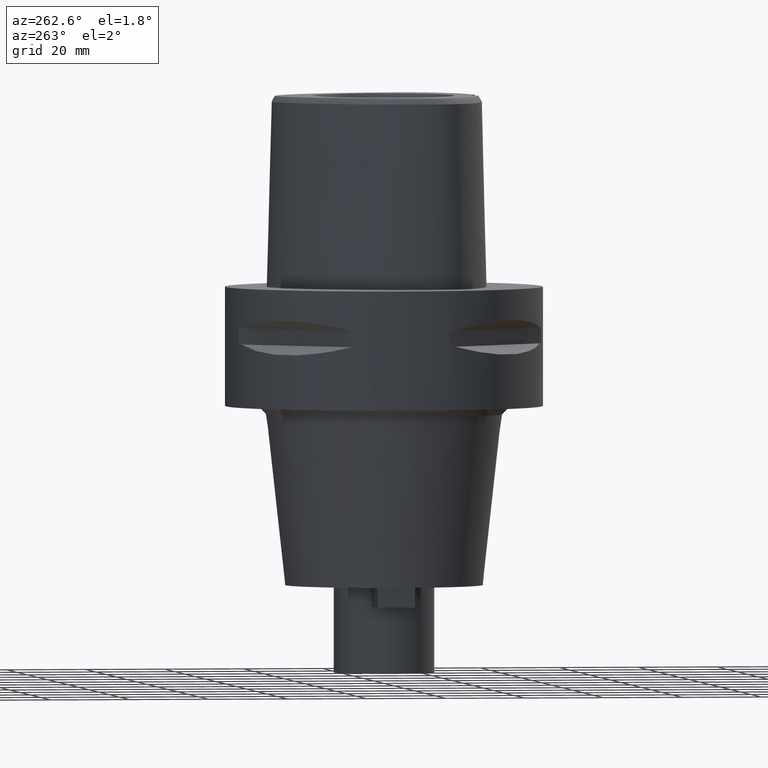
[diagram: clean part render]
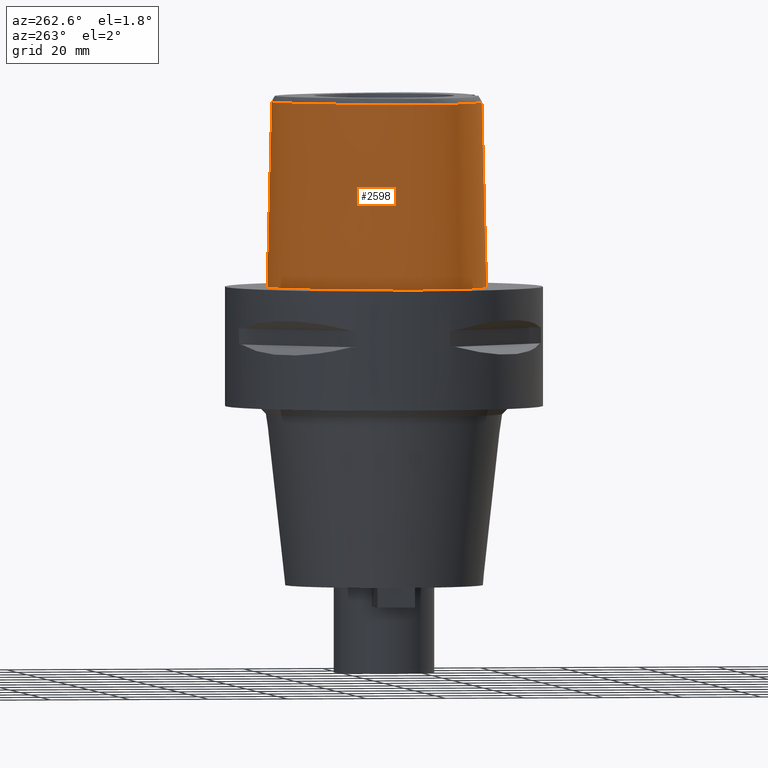
[diagram: same view with one face highlighted and labeled with its STEP entity id]
A machine part, auxiliary view. The second image highlights one B-rep face of the part: STEP entity #2598.
In plain terms, the highlighted face is a freeform B-spline surface patch.
Its self-contained STEP definition (entity closure, byte-faithful):
#197=CARTESIAN_POINT('',(-4.472216406693E0,-2.420008985674E1,4.652070903171E1));
#198=CARTESIAN_POINT('',(-5.535079913525E0,-2.409834636367E1,4.652067798742E1));
#199=CARTESIAN_POINT('',(-7.535595257883E0,-2.383081048525E1,4.652073781250E1));
#200=CARTESIAN_POINT('',(-1.009307845785E1,-2.331390936801E1,4.652070625638E1));
#201=CARTESIAN_POINT('',(-1.233471018789E1,-2.271209935797E1,4.652071928825E1));
#202=CARTESIAN_POINT('',(-1.435036654405E1,-2.203135642315E1,4.652071943964E1));
#203=CARTESIAN_POINT('',(-1.619307667877E1,-2.126999841162E1,4.652071671385E1));
#204=CARTESIAN_POINT('',(-1.788331347372E1,-2.042814453401E1,4.652071968170E1));
#205=CARTESIAN_POINT('',(-1.945535962634E1,-1.948913566345E1,4.652071715150E1));
#206=CARTESIAN_POINT('',(-2.090395454495E1,-1.844437692539E1,4.652071817073E1));
#207=CARTESIAN_POINT('',(-2.214939259759E1,-1.735352740852E1,4.652071779296E1));
#208=CARTESIAN_POINT('',(-2.319114740546E1,-1.624464701558E1,4.652072111417E1));
#209=CARTESIAN_POINT('',(-2.405077292770E1,-1.512522284559E1,4.652072273070E1));
#210=CARTESIAN_POINT('',(-2.475815044172E1,-1.398223285114E1,4.652071975250E1));
#211=CARTESIAN_POINT('',(-2.535403952562E1,-1.275498324401E1,4.652071183143E1));
#212=CARTESIAN_POINT('',(-2.585545021544E1,-1.138820077608E1,4.652072122850E1));
#213=CARTESIAN_POINT('',(-2.624771183551E1,-9.875479468949E0,4.652071783765E1));
#214=CARTESIAN_POINT('',(-2.651846621658E1,-8.164311115071E0,4.652072296803E1));
#215=CARTESIAN_POINT('',(-2.663464419349E1,-6.356717812980E0,4.652071358778E1));
#216=CARTESIAN_POINT('',(-2.660265805671E1,-4.512989598004E0,4.652072646558E1));
#217=CARTESIAN_POINT('',(-2.642810854328E1,-2.594725756626E0,4.652071595232E1));
#218=CARTESIAN_POINT('',(-2.610483033800E1,-5.805663036551E-1,
4.652071510822E1));
#219=CARTESIAN_POINT('',(-2.561698099087E1,1.563241255968E0,4.652072159184E1));
#220=CARTESIAN_POINT('',(-2.492848842552E1,3.896544844351E0,4.652070167691E1));
#221=CARTESIAN_POINT('',(-2.397831630212E1,6.493213675477E0,4.652072651957E1));
#222=CARTESIAN_POINT('',(-2.266928276933E1,9.432293451404E0,4.652069367661E1));
#223=CARTESIAN_POINT('',(-2.098526523257E1,1.256401138798E1,4.652072589834E1));
#224=CARTESIAN_POINT('',(-1.908911206528E1,1.552038082199E1,4.652068202500E1));
#225=CARTESIAN_POINT('',(-1.722770370653E1,1.800369853507E1,4.652072763469E1));
#226=CARTESIAN_POINT('',(-1.546291389105E1,2.005580697405E1,4.652070862034E1));
#227=CARTESIAN_POINT('',(-1.379712542896E1,2.175766165293E1,4.652072125478E1));
#228=CARTESIAN_POINT('',(-1.221448106099E1,2.318423791974E1,4.652072841709E1));
#229=CARTESIAN_POINT('',(-1.063617369661E1,2.443223519402E1,4.652071389124E1));
#230=CARTESIAN_POINT('',(-9.052824528799E0,2.551385900241E1,4.652072506753E1));
#231=CARTESIAN_POINT('',(-7.452548821259E0,2.643764698259E1,4.652071441583E1));
#232=CARTESIAN_POINT('',(-5.840501792544E0,2.719596897785E1,4.652072037619E1));
#233=CARTESIAN_POINT('',(-4.254904064548E0,2.776933914548E1,4.652071717695E1));
#234=CARTESIAN_POINT('',(-2.761676504870E0,2.815072437796E1,4.652072095270E1));
#235=CARTESIAN_POINT('',(-1.343303657169E0,2.836665663468E1,4.652067425526E1));
#236=CARTESIAN_POINT('',(-4.481964876174E-1,2.841206021535E1,4.652071719450E1));
#237=CARTESIAN_POINT('',(-1.223001322119E-11,2.841206021535E1,
4.652071719451E1));
#249=CARTESIAN_POINT('',(-4.472216406693E0,-2.420008985674E1,4.652070903171E1));
#250=CARTESIAN_POINT('',(-4.487210721186E0,-2.421685468864E1,4.579601479726E1));
#251=CARTESIAN_POINT('',(-4.516393871198E0,-2.424985511122E1,4.434671166025E1));
#252=CARTESIAN_POINT('',(-4.559960929945E0,-2.430022581201E1,4.217314625867E1));
#253=CARTESIAN_POINT('',(-4.588866880071E0,-2.433440429495E1,4.072435065553E1));
#254=CARTESIAN_POINT('',(-4.602926399294E0,-2.435121850033E1,4.E1));
#259=DIRECTION('',(1.388127436484E-9,-2.499239851702E-2,-9.996876412242E-1));
#260=VECTOR('',#259,1.045326522127E1);
#261=CARTESIAN_POINT('',(-1.451045074373E-8,-2.457504746727E1,
4.000000005214E1));
#262=LINE('',#261,#260);
#266=CARTESIAN_POINT('',(1.351075727146E-14,-2.483629963748E1,2.955E1));
#267=CARTESIAN_POINT('',(-3.966835984646E-1,-2.483629963748E1,2.955E1));
#268=CARTESIAN_POINT('',(-1.190418809773E0,-2.482887723659E1,2.944561742728E1));
#269=CARTESIAN_POINT('',(-2.300741017991E0,-2.479906243005E1,2.898605904871E1));
#270=CARTESIAN_POINT('',(-3.255789090205E0,-2.476057038817E1,2.825311794410E1));
#271=CARTESIAN_POINT('',(-3.987636326582E0,-2.472742176594E1,2.729796279280E1));
#272=CARTESIAN_POINT('',(-4.446358689829E0,-2.471345406062E1,2.618734946089E1));
#273=CARTESIAN_POINT('',(-4.602009607481E0,-2.472805014992E1,2.499856857259E1));
#274=CARTESIAN_POINT('',(-4.445601745922E0,-2.477322141726E1,2.381050642308E1));
#275=CARTESIAN_POINT('',(-3.987821795884E0,-2.484269847339E1,2.270284549258E1));
#276=CARTESIAN_POINT('',(-3.257169514981E0,-2.492348668177E1,2.174816226309E1));
#277=CARTESIAN_POINT('',(-2.300561363557E0,-2.499862191626E1,2.101354524447E1));
#278=CARTESIAN_POINT('',(-1.188130274278E0,-2.505127109848E1,2.055374615128E1));
#279=CARTESIAN_POINT('',(-3.956083647812E-1,-2.506378435149E1,2.045E1));
#280=CARTESIAN_POINT('',(-2.127607699843E-12,-2.506378435149E1,2.045E1));
#285=DIRECTION('',(-7.325173620148E-13,-2.499051295404E-2,-9.996876883619E-1));
#286=VECTOR('',#285,2.045638876829E1);
#287=CARTESIAN_POINT('',(-2.127607699843E-12,-2.506378435149E1,2.045E1));
#288=LINE('',#287,#286);
#352=CARTESIAN_POINT('',(4.094835159435E-11,2.957499999999E1,
1.055452022077E-13));
#353=CARTESIAN_POINT('',(-4.664492066815E-1,2.957499999999E1,
1.055452022077E-13));
#354=CARTESIAN_POINT('',(-1.418242704634E0,2.952848682531E1,
-4.898369881463E-14));
#355=CARTESIAN_POINT('',(-2.896147700087E0,2.930996495840E1,
1.312514253967E-14));
#356=CARTESIAN_POINT('',(-4.443734524137E0,2.892713019222E1,0.E0));
#357=CARTESIAN_POINT('',(-6.069592460945E0,2.835907222645E1,0.E0));
#358=CARTESIAN_POINT('',(-7.780103468606E0,2.758125468811E1,0.E0));
#359=CARTESIAN_POINT('',(-9.585136312383E0,2.656099677936E1,0.E0));
#360=CARTESIAN_POINT('',(-1.148325105402E1,2.526460211256E1,0.E0));
#361=CARTESIAN_POINT('',(-1.346592801234E1,2.365809879658E1,0.E0));
#362=CARTESIAN_POINT('',(-1.551281362234E1,2.171229887756E1,0.E0));
#363=CARTESIAN_POINT('',(-1.758152203339E1,1.941913383564E1,0.E0));
#364=CARTESIAN_POINT('',(-1.961636946491E1,1.679325633039E1,0.E0));
#365=CARTESIAN_POINT('',(-2.154311519714E1,1.388872578342E1,0.E0));
#366=CARTESIAN_POINT('',(-2.327587730795E1,1.081389531570E1,0.E0));
#367=CARTESIAN_POINT('',(-2.474764981090E1,7.690052516361E0,0.E0));
#368=CARTESIAN_POINT('',(-2.591475871761E1,4.648580962234E0,0.E0));
#369=CARTESIAN_POINT('',(-2.677994732386E1,1.762463871786E0,0.E0));
#370=CARTESIAN_POINT('',(-2.736237531159E1,-9.191335877877E-1,0.E0));
#371=CARTESIAN_POINT('',(-2.769336731104E1,-3.373353751623E0,0.E0));
#372=CARTESIAN_POINT('',(-2.780796372741E1,-5.602146512739E0,0.E0));
#373=CARTESIAN_POINT('',(-2.773921430796E1,-7.614298704473E0,0.E0));
#374=CARTESIAN_POINT('',(-2.751400124439E1,-9.436000696666E0,0.E0));
#375=CARTESIAN_POINT('',(-2.715798462075E1,-1.107049023372E1,0.E0));
#376=CARTESIAN_POINT('',(-2.668475137063E1,-1.255749387893E1,0.E0));
#377=CARTESIAN_POINT('',(-2.610203400523E1,-1.391899705825E1,0.E0));
#378=CARTESIAN_POINT('',(-2.539933240867E1,-1.519232098392E1,0.E0));
#379=CARTESIAN_POINT('',(-2.455836106728E1,-1.640386755356E1,0.E0));
#380=CARTESIAN_POINT('',(-2.356857694338E1,-1.756879355904E1,0.E0));
#381=CARTESIAN_POINT('',(-2.239463589566E1,-1.871038805292E1,0.E0));
#382=CARTESIAN_POINT('',(-2.101811345538E1,-1.982120890696E1,0.E0));
#383=CARTESIAN_POINT('',(-1.940077071767E1,-2.090283511574E1,0.E0));
#384=CARTESIAN_POINT('',(-1.751749622752E1,-2.193823305883E1,0.E0));
#385=CARTESIAN_POINT('',(-1.533508309597E1,-2.291005386143E1,0.E0));
#386=CARTESIAN_POINT('',(-1.283577533724E1,-2.378850611775E1,0.E0));
#387=CARTESIAN_POINT('',(-1.001105606867E1,-2.453917112398E1,0.E0));
#388=CARTESIAN_POINT('',(-6.880663195532E0,-2.512052606970E1,
1.393050717657E-14));
#389=CARTESIAN_POINT('',(-3.517836392483E0,-2.548906831371E1,
-5.198936055817E-14));
#390=CARTESIAN_POINT('',(-1.190696470020E0,-2.5575E1,1.120215031847E-13));
#391=CARTESIAN_POINT('',(-1.711226763674E-11,-2.5575E1,1.120215031847E-13));
#1037=DIRECTION('',(1.142754450046E-12,2.499051293969E-2,-9.996876883622E-1));
#1038=VECTOR('',#1037,4.653525069487E1);
#1039=CARTESIAN_POINT('',(-1.223001322119E-11,2.841206021535E1,
4.652071719451E1));
#1040=LINE('',#1039,#1038);
#1054=CARTESIAN_POINT('',(-1.451045074373E-8,-2.457504746727E1,
4.000000005214E1));
#1055=CARTESIAN_POINT('',(-5.124223382063E-1,-2.457504746706E1,
4.000000005214E1));
#1056=CARTESIAN_POINT('',(-1.536621703185E0,-2.455890147822E1,
3.999999997567E1));
#1057=CARTESIAN_POINT('',(-3.071957833090E0,-2.448406989332E1,
4.000000000695E1));
#1058=CARTESIAN_POINT('',(-4.092927957720E0,-2.440134255033E1,4.E1));
#1059=CARTESIAN_POINT('',(-4.602926399294E0,-2.435121850033E1,4.E1));
#1675=CARTESIAN_POINT('',(-4.602965878456E0,-2.435127227233E1,4.E1));
#1676=VERTEX_POINT('',#1675);
#1677=VERTEX_POINT('',#249);
#1678=CARTESIAN_POINT('',(-1.223001322119E-11,2.841206021535E1,
4.652071719451E1));
#1679=VERTEX_POINT('',#1678);
#1680=VERTEX_POINT('',#352);
#1681=VERTEX_POINT('',#391);
#1682=VERTEX_POINT('',#1054);
#1683=CARTESIAN_POINT('',(1.351075727145E-14,-2.483629963748E1,2.955E1));
#1684=VERTEX_POINT('',#1683);
#1685=VERTEX_POINT('',#280);
#2473=CARTESIAN_POINT('',(9.115101686113E-1,2.956851176048E1,
-9.304144968240E-1));
#2474=CARTESIAN_POINT('',(8.850788438825E-1,2.916624660662E1,1.519677011479E1));
#2475=CARTESIAN_POINT('',(8.586475191537E-1,2.876398145275E1,3.132395472641E1));
#2476=CARTESIAN_POINT('',(8.322161944249E-1,2.836171629889E1,4.745113933802E1));
#2477=CARTESIAN_POINT('',(6.077626423975E-1,2.958843421417E1,
-9.304144968240E-1));
#2478=CARTESIAN_POINT('',(5.902542483653E-1,2.918556699596E1,1.519677011479E1));
#2479=CARTESIAN_POINT('',(5.727458543332E-1,2.878269977775E1,3.132395472641E1));
#2480=CARTESIAN_POINT('',(5.552374603011E-1,2.837983255954E1,4.745113933802E1));
#2481=CARTESIAN_POINT('',(-7.475778414575E-1,2.963225228778E1,
-9.304144968240E-1));
#2482=CARTESIAN_POINT('',(-7.257524940517E-1,2.922811258823E1,
1.519677011479E1));
#2483=CARTESIAN_POINT('',(-7.039271466459E-1,2.882397288867E1,
3.132395472641E1));
#2484=CARTESIAN_POINT('',(-6.821017992401E-1,2.841983318911E1,
4.745113933802E1));
#2485=CARTESIAN_POINT('',(-3.154109046613E0,2.936302093424E1,
-9.304144968240E-1));
#2486=CARTESIAN_POINT('',(-3.067023396845E0,2.896669974076E1,1.519677011479E1));
#2487=CARTESIAN_POINT('',(-2.979937747076E0,2.857037854728E1,3.132395472641E1));
#2488=CARTESIAN_POINT('',(-2.892852097308E0,2.817405735379E1,4.745113933802E1));
#2489=CARTESIAN_POINT('',(-6.271543170707E0,2.837237220568E1,
-9.304144968240E-1));
#2490=CARTESIAN_POINT('',(-6.114741921517E0,2.799897532802E1,1.519677011479E1));
#2491=CARTESIAN_POINT('',(-5.957940672326E0,2.762557845036E1,3.132395472641E1));
#2492=CARTESIAN_POINT('',(-5.801139423135E0,2.725218157270E1,4.745113933802E1));
#2493=CARTESIAN_POINT('',(-9.316733117529E0,2.681182150683E1,
-9.304144968240E-1));
#2494=CARTESIAN_POINT('',(-9.105791461662E0,2.646675913852E1,1.519677011479E1));
#2495=CARTESIAN_POINT('',(-8.894849805796E0,2.612169677021E1,3.132395472641E1));
#2496=CARTESIAN_POINT('',(-8.683908149929E0,2.577663440190E1,4.745113933802E1));
#2497=CARTESIAN_POINT('',(-1.323332856326E1,2.406149249942E1,
-9.304144968240E-1));
#2498=CARTESIAN_POINT('',(-1.296695409468E1,2.375598709284E1,1.519677011479E1));
#2499=CARTESIAN_POINT('',(-1.270057962611E1,2.345048168627E1,3.132395472641E1));
#2500=CARTESIAN_POINT('',(-1.243420515754E1,2.314497627969E1,4.745113933802E1));
#2501=CARTESIAN_POINT('',(-1.777103258667E1,1.953703864479E1,
-9.304144968240E-1));
#2502=CARTESIAN_POINT('',(-1.745811262059E1,1.927961880173E1,1.519677011479E1));
#2503=CARTESIAN_POINT('',(-1.714519265452E1,1.902219895867E1,3.132395472641E1));
#2504=CARTESIAN_POINT('',(-1.683227268844E1,1.876477911561E1,4.745113933802E1));
#2505=CARTESIAN_POINT('',(-2.235908247811E1,1.290902243076E1,
-9.304144968240E-1));
#2506=CARTESIAN_POINT('',(-2.200846692393E1,1.270659196425E1,1.519677011479E1));
#2507=CARTESIAN_POINT('',(-2.165785136975E1,1.250416149774E1,3.132395472641E1));
#2508=CARTESIAN_POINT('',(-2.130723581556E1,1.230173103123E1,4.745113933802E1));
#2509=CARTESIAN_POINT('',(-2.523075706229E1,6.836210430757E0,
-9.304144968240E-1));
#2510=CARTESIAN_POINT('',(-2.485610464692E1,6.683875464307E0,1.519677011479E1));
#2511=CARTESIAN_POINT('',(-2.448145223156E1,6.531540497856E0,3.132395472641E1));
#2512=CARTESIAN_POINT('',(-2.410679981619E1,6.379205531406E0,4.745113933802E1));
#2513=CARTESIAN_POINT('',(-2.679474625822E1,1.906447387461E0,
-9.304144968240E-1));
#2514=CARTESIAN_POINT('',(-2.640443225603E1,1.802817671466E0,1.519677011479E1));
#2515=CARTESIAN_POINT('',(-2.601411825383E1,1.699187955470E0,3.132395472641E1));
#2516=CARTESIAN_POINT('',(-2.562380425164E1,1.595558239475E0,4.745113933802E1));
#2517=CARTESIAN_POINT('',(-2.756041892290E1,-1.762105663687E0,
-9.304144968240E-1));
#2518=CARTESIAN_POINT('',(-2.716099298168E1,-1.823107493119E0,
1.519677011479E1));
#2519=CARTESIAN_POINT('',(-2.676156704046E1,-1.884109322552E0,
3.132395472641E1));
#2520=CARTESIAN_POINT('',(-2.636214109923E1,-1.945111151985E0,
4.745113933802E1));
#2521=CARTESIAN_POINT('',(-2.787808443150E1,-5.337383714056E0,
-9.304144968240E-1));
#2522=CARTESIAN_POINT('',(-2.747379250787E1,-5.347524337090E0,
1.519677011479E1));
#2523=CARTESIAN_POINT('',(-2.706950058424E1,-5.357664960124E0,
3.132395472641E1));
#2524=CARTESIAN_POINT('',(-2.666520866061E1,-5.367805583158E0,
4.745113933802E1));
#2525=CARTESIAN_POINT('',(-2.770696775952E1,-8.754869100897E0,
-9.304144968240E-1));
#2526=CARTESIAN_POINT('',(-2.730517726059E1,-8.703986977012E0,
1.519677011479E1));
#2527=CARTESIAN_POINT('',(-2.690338676167E1,-8.653104853127E0,
3.132395472641E1));
#2528=CARTESIAN_POINT('',(-2.650159626274E1,-8.602222729243E0,
4.745113933802E1));
#2529=CARTESIAN_POINT('',(-2.712297208029E1,-1.141745865554E1,
-9.304144968240E-1));
#2530=CARTESIAN_POINT('',(-2.673375369938E1,-1.130662581370E1,
1.519677011479E1));
#2531=CARTESIAN_POINT('',(-2.634453531846E1,-1.119579297186E1,
3.132395472641E1));
#2532=CARTESIAN_POINT('',(-2.595531693755E1,-1.108496013002E1,
4.745113933802E1));
#2533=CARTESIAN_POINT('',(-2.637046814586E1,-1.340391019840E1,
-9.304144968240E-1));
#2534=CARTESIAN_POINT('',(-2.600056140232E1,-1.324168030114E1,
1.519677011479E1));
#2535=CARTESIAN_POINT('',(-2.563065465879E1,-1.307945040389E1,
3.132395472641E1));
#2536=CARTESIAN_POINT('',(-2.526074791526E1,-1.291722050664E1,
4.745113933802E1));
#2537=CARTESIAN_POINT('',(-2.565830880207E1,-1.481383149385E1,
-9.304144968240E-1));
#2538=CARTESIAN_POINT('',(-2.530843714183E1,-1.461183299639E1,
1.519677011479E1));
#2539=CARTESIAN_POINT('',(-2.495856548159E1,-1.440983449893E1,
3.132395472641E1));
#2540=CARTESIAN_POINT('',(-2.460869382135E1,-1.420783600147E1,
4.745113933802E1));
#2541=CARTESIAN_POINT('',(-2.479336081490E1,-1.613554022482E1,
-9.304144968240E-1));
#2542=CARTESIAN_POINT('',(-2.446791222898E1,-1.589630653638E1,
1.519677011479E1));
#2543=CARTESIAN_POINT('',(-2.414246364306E1,-1.565707284795E1,
3.132395472641E1));
#2544=CARTESIAN_POINT('',(-2.381701505714E1,-1.541783915951E1,
4.745113933802E1));
#2545=CARTESIAN_POINT('',(-2.344929528191E1,-1.778045351983E1,
-9.304144968240E-1));
#2546=CARTESIAN_POINT('',(-2.315870204520E1,-1.749879693646E1,
1.519677011479E1));
#2547=CARTESIAN_POINT('',(-2.286810880849E1,-1.721714035309E1,
3.132395472641E1));
#2548=CARTESIAN_POINT('',(-2.257751557178E1,-1.693548376972E1,
4.745113933802E1));
#2549=CARTESIAN_POINT('',(-2.143542293278E1,-1.961750339172E1,
-9.304144968240E-1));
#2550=CARTESIAN_POINT('',(-2.119046238759E1,-1.929498366441E1,
1.519677011479E1));
#2551=CARTESIAN_POINT('',(-2.094550184240E1,-1.897246393711E1,
3.132395472641E1));
#2552=CARTESIAN_POINT('',(-2.070054129720E1,-1.864994420980E1,
4.745113933802E1));
#2553=CARTESIAN_POINT('',(-1.856135208421E1,-2.147443746735E1,
-9.304144968240E-1));
#2554=CARTESIAN_POINT('',(-1.836798846573E1,-2.111924011667E1,
1.519677011479E1));
#2555=CARTESIAN_POINT('',(-1.817462484726E1,-2.076404276600E1,
3.132395472641E1));
#2556=CARTESIAN_POINT('',(-1.798126122879E1,-2.040884541532E1,
4.745113933802E1));
#2557=CARTESIAN_POINT('',(-1.530623779618E1,-2.298697010234E1,
-9.304144968240E-1));
#2558=CARTESIAN_POINT('',(-1.515935281863E1,-2.261055603677E1,
1.519677011479E1));
#2559=CARTESIAN_POINT('',(-1.501246784109E1,-2.223414197120E1,
3.132395472641E1));
#2560=CARTESIAN_POINT('',(-1.486558286354E1,-2.185772790564E1,
4.745113933802E1));
#2561=CARTESIAN_POINT('',(-1.174634101497E1,-2.415815461142E1,
-9.304144968240E-1));
#2562=CARTESIAN_POINT('',(-1.164093423792E1,-2.376831843010E1,
1.519677011479E1));
#2563=CARTESIAN_POINT('',(-1.153552746087E1,-2.337848224878E1,
3.132395472641E1));
#2564=CARTESIAN_POINT('',(-1.143012068381E1,-2.298864606745E1,
4.745113933802E1));
#2565=CARTESIAN_POINT('',(-6.695047936573E0,-2.526858194671E1,
-9.304144968240E-1));
#2566=CARTESIAN_POINT('',(-6.639625075624E0,-2.486795320378E1,
1.519677011479E1));
#2567=CARTESIAN_POINT('',(-6.584202214675E0,-2.446732446086E1,
3.132395472641E1));
#2568=CARTESIAN_POINT('',(-6.528779353726E0,-2.406669571794E1,
4.745113933802E1));
#2569=CARTESIAN_POINT('',(-2.393548608073E0,-2.562160468887E1,
-9.304144968240E-1));
#2570=CARTESIAN_POINT('',(-2.373852717961E0,-2.521827344341E1,
1.519677011479E1));
#2571=CARTESIAN_POINT('',(-2.354156827848E0,-2.481494219795E1,
3.132395472641E1));
#2572=CARTESIAN_POINT('',(-2.334460937736E0,-2.441161095249E1,
4.745113933802E1));
#2573=CARTESIAN_POINT('',(5.689259951284E-1,-2.559577895960E1,
-9.304144968240E-1));
#2574=CARTESIAN_POINT('',(5.642418783074E-1,-2.519264541840E1,
1.519677011479E1));
#2575=CARTESIAN_POINT('',(5.595577614864E-1,-2.478951187719E1,
3.132395472641E1));
#2576=CARTESIAN_POINT('',(5.548736446653E-1,-2.438637833599E1,
4.745113933802E1));
#2577=CARTESIAN_POINT('',(8.532670504070E-1,-2.559082387580E1,
-9.304144968240E-1));
#2578=CARTESIAN_POINT('',(8.462420187106E-1,-2.518772735175E1,
1.519677011479E1));
#2579=CARTESIAN_POINT('',(8.392169870141E-1,-2.478463082769E1,
3.132395472641E1));
#2580=CARTESIAN_POINT('',(8.321919553177E-1,-2.438153430363E1,
4.745113933802E1));
#2581=B_SPLINE_SURFACE_WITH_KNOTS('',3,3,((#2473,#2474,#2475,#2476),(#2477,
#2478,#2479,#2480),(#2481,#2482,#2483,#2484),(#2485,#2486,#2487,#2488),(#2489,
#2490,#2491,#2492),(#2493,#2494,#2495,#2496),(#2497,#2498,#2499,#2500),(#2501,
#2502,#2503,#2504),(#2505,#2506,#2507,#2508),(#2509,#2510,#2511,#2512),(#2513,
#2514,#2515,#2516),(#2517,#2518,#2519,#2520),(#2521,#2522,#2523,#2524),(#2525,
#2526,#2527,#2528),(#2529,#2530,#2531,#2532),(#2533,#2534,#2535,#2536),(#2537,
#2538,#2539,#2540),(#2541,#2542,#2543,#2544),(#2545,#2546,#2547,#2548),(#2549,
#2550,#2551,#2552),(#2553,#2554,#2555,#2556),(#2557,#2558,#2559,#2560),(#2561,
#2562,#2563,#2564),(#2565,#2566,#2567,#2568),(#2569,#2570,#2571,#2572),(#2573,
#2574,#2575,#2576),(#2577,#2578,#2579,#2580)),.UNSPECIFIED.,.F.,.F.,.F.,(4,1,1,
1,1,1,1,1,1,1,1,1,1,1,1,1,1,1,1,1,1,1,1,1,4),(4,4),(-1.204223939042E-2,0.E0,
4.166666666718E-2,8.333333333380E-2,1.250000000004E-1,1.666666666671E-1,
2.500000000003E-1,3.333333333336E-1,4.166666666669E-1,4.583333333335E-1,
5.000000000001E-1,5.416666666668E-1,5.833333333334E-1,6.25E-1,6.458333333333E-1,
6.666666666667E-1,6.875E-1,7.083333333333E-1,7.499999999999E-1,
7.916666666666E-1,8.333333333332E-1,8.749999999998E-1,9.166666666665E-1,1.E0,
1.008851807893E0),(4.920977885597E-9,9.999997490301E-1),.UNSPECIFIED.);
#2583=ORIENTED_EDGE('',*,*,#2582,.F.);
#2585=ORIENTED_EDGE('',*,*,#2584,.F.);
#2586=ORIENTED_EDGE('',*,*,#2466,.F.);
#2587=ORIENTED_EDGE('',*,*,#1895,.T.);
#2589=ORIENTED_EDGE('',*,*,#2588,.F.);
#2591=ORIENTED_EDGE('',*,*,#2590,.T.);
#2593=ORIENTED_EDGE('',*,*,#2592,.T.);
#2595=ORIENTED_EDGE('',*,*,#2594,.T.);
#2596=EDGE_LOOP('',(#2583,#2585,#2586,#2587,#2589,#2591,#2593,#2595));
#2597=FACE_OUTER_BOUND('',#2596,.F.);
#238=B_SPLINE_CURVE_WITH_KNOTS('',3,(#197,#198,#199,#200,#201,#202,#203,#204,
#205,#206,#207,#208,#209,#210,#211,#212,#213,#214,#215,#216,#217,#218,#219,#220,
#221,#222,#223,#224,#225,#226,#227,#228,#229,#230,#231,#232,#233,#234,#235,#236,
#237),.UNSPECIFIED.,.F.,.F.,(4,1,1,1,1,1,1,1,1,1,1,1,1,1,1,1,1,1,1,1,1,1,1,1,1,
1,1,1,1,1,1,1,1,1,1,1,1,1,4),(0.E0,2.631578947368E-2,5.263157894737E-2,
7.894736842105E-2,1.052631578947E-1,1.315789473684E-1,1.578947368421E-1,
1.842105263158E-1,2.105263157895E-1,2.368421052632E-1,2.631578947368E-1,
2.894736842105E-1,3.157894736842E-1,3.421052631579E-1,3.684210526316E-1,
3.947368421053E-1,4.210526315789E-1,4.473684210526E-1,4.736842105263E-1,5.E-1,
5.263157894737E-1,5.526315789474E-1,5.789473684211E-1,6.052631578947E-1,
6.315789473684E-1,6.578947368421E-1,6.842105263158E-1,7.105263157895E-1,
7.368421052632E-1,7.631578947368E-1,7.894736842105E-1,8.157894736842E-1,
8.421052631579E-1,8.684210526316E-1,8.947368421053E-1,9.210526315789E-1,
9.473684210526E-1,9.736842105263E-1,1.E0),.UNSPECIFIED.);
#255=B_SPLINE_CURVE_WITH_KNOTS('',3,(#249,#250,#251,#252,#253,#254),
.UNSPECIFIED.,.F.,.F.,(4,1,1,4),(0.E0,3.333333333333E-1,6.666666666667E-1,1.E0),
.UNSPECIFIED.);
#281=B_SPLINE_CURVE_WITH_KNOTS('',3,(#266,#267,#268,#269,#270,#271,#272,#273,
#274,#275,#276,#277,#278,#279,#280),.UNSPECIFIED.,.F.,.F.,(4,1,1,1,1,1,1,1,1,1,
1,1,4),(0.E0,8.333333333333E-2,1.666666666667E-1,2.5E-1,3.333333333333E-1,
4.166666666667E-1,5.E-1,5.833333333333E-1,6.666666666667E-1,7.5E-1,
8.333333333333E-1,9.166666666667E-1,1.E0),.UNSPECIFIED.);
#392=B_SPLINE_CURVE_WITH_KNOTS('',3,(#352,#353,#354,#355,#356,#357,#358,#359,
#360,#361,#362,#363,#364,#365,#366,#367,#368,#369,#370,#371,#372,#373,#374,#375,
#376,#377,#378,#379,#380,#381,#382,#383,#384,#385,#386,#387,#388,#389,#390,
#391),.UNSPECIFIED.,.F.,.F.,(4,1,1,1,1,1,1,1,1,1,1,1,1,1,1,1,1,1,1,1,1,1,1,1,1,
1,1,1,1,1,1,1,1,1,1,1,1,4),(0.E0,2.702702702703E-2,5.405405405405E-2,
8.108108108108E-2,1.081081081081E-1,1.351351351351E-1,1.621621621622E-1,
1.891891891892E-1,2.162162162162E-1,2.432432432432E-1,2.702702702703E-1,
2.972972972973E-1,3.243243243243E-1,3.513513513514E-1,3.783783783784E-1,
4.054054054054E-1,4.324324324324E-1,4.594594594595E-1,4.864864864865E-1,
5.135135135135E-1,5.405405405405E-1,5.675675675676E-1,5.945945945946E-1,
6.216216216216E-1,6.486486486486E-1,6.756756756757E-1,7.027027027027E-1,
7.297297297297E-1,7.567567567568E-1,7.837837837838E-1,8.108108108108E-1,
8.378378378378E-1,8.648648648649E-1,8.918918918919E-1,9.189189189189E-1,
9.459459459459E-1,9.729729729730E-1,1.E0),.UNSPECIFIED.);
#1060=B_SPLINE_CURVE_WITH_KNOTS('',3,(#1054,#1055,#1056,#1057,#1058,#1059),
.UNSPECIFIED.,.F.,.F.,(4,1,1,4),(0.E0,3.333333333333E-1,6.666666666667E-1,1.E0),
.UNSPECIFIED.);
#1895=EDGE_CURVE('',#1677,#1676,#255,.T.);
#2466=EDGE_CURVE('',#1677,#1679,#238,.T.);
#2582=EDGE_CURVE('',#1680,#1681,#392,.T.);
#2584=EDGE_CURVE('',#1679,#1680,#1040,.T.);
#2588=EDGE_CURVE('',#1682,#1676,#1060,.T.);
#2590=EDGE_CURVE('',#1682,#1684,#262,.T.);
#2592=EDGE_CURVE('',#1684,#1685,#281,.T.);
#2594=EDGE_CURVE('',#1685,#1681,#288,.T.);
#2598=ADVANCED_FACE('',(#2597),#2581,.T.);